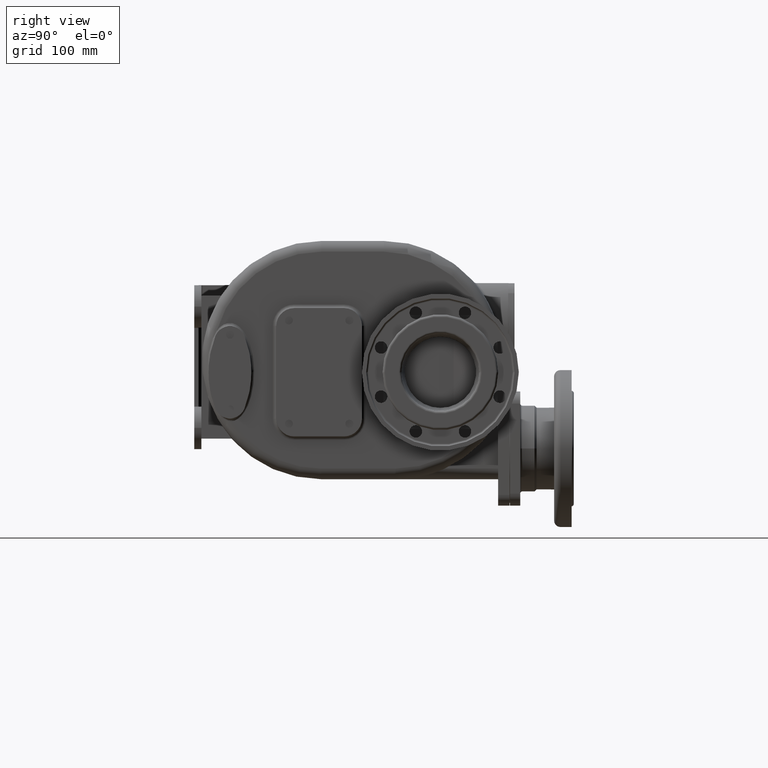
[diagram: clean part render]
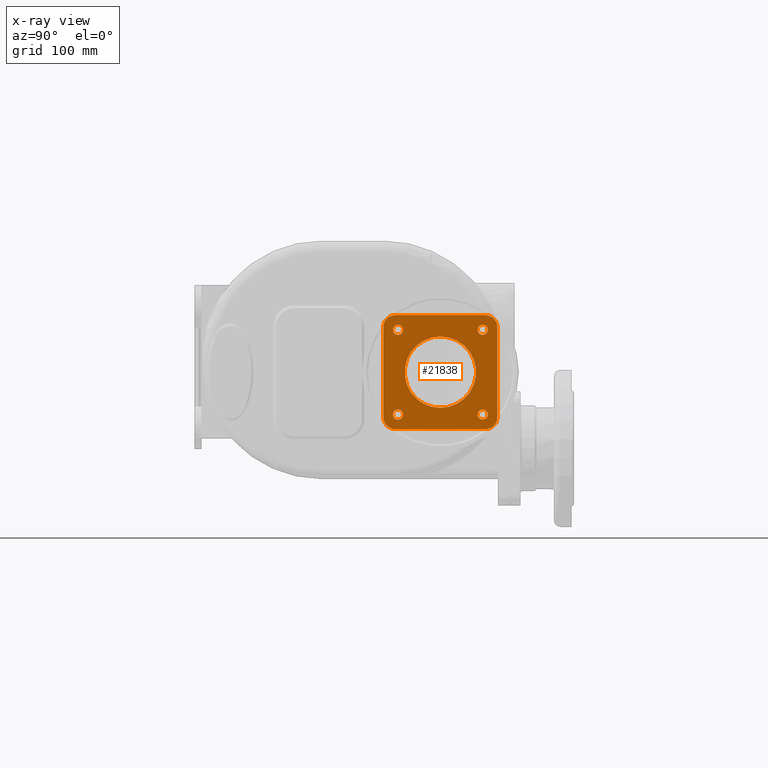
[diagram: x-ray — body ghosted, one internal face saturated and labeled with its STEP entity id]
A machine part, right view, then the same camera in x-ray: the body is ghosted and one INTERNAL B-rep face — a face not visible from any outside direction — is saturated and labeled: STEP entity #21838.
In plain terms, the highlighted planar face has unit normal (1, 0, 0).
Its self-contained STEP definition (entity closure, byte-faithful):
#3060=CARTESIAN_POINT('',(2.01E2,3.98E2,4.6E1));
#3061=DIRECTION('',(-1.E0,0.E0,0.E0));
#3062=DIRECTION('',(0.E0,-1.203742987641E-13,1.E0));
#3063=AXIS2_PLACEMENT_3D('',#3060,#3061,#3062);
#3110=DIRECTION('',(0.E0,0.E0,1.E0));
#3111=VECTOR('',#3110,1.26E2);
#3112=CARTESIAN_POINT('',(2.01E2,4.15E2,-8.E1));
#3113=LINE('',#3112,#3111);
#3123=CARTESIAN_POINT('',(2.01E2,3.98E2,-8.E1));
#3124=DIRECTION('',(-1.E0,0.E0,0.E0));
#3125=DIRECTION('',(0.E0,1.E0,1.596631323884E-13));
#3126=AXIS2_PLACEMENT_3D('',#3123,#3124,#3125);
#6542=DIRECTION('',(0.E0,-1.E0,0.E0));
#6543=VECTOR('',#6542,1.26E2);
#6544=CARTESIAN_POINT('',(2.01E2,3.98E2,6.3E1));
#6545=LINE('',#6544,#6543);
#6554=CARTESIAN_POINT('',(2.01E2,3.35E2,-1.7E1));
#6555=DIRECTION('',(1.E0,0.E0,0.E0));
#6556=DIRECTION('',(0.E0,0.E0,-1.E0));
#6557=AXIS2_PLACEMENT_3D('',#6554,#6555,#6556);
#6559=CARTESIAN_POINT('',(2.01E2,3.35E2,-1.7E1));
#6560=DIRECTION('',(-1.E0,0.E0,0.E0));
#6561=DIRECTION('',(0.E0,0.E0,-1.E0));
#6562=AXIS2_PLACEMENT_3D('',#6559,#6560,#6561);
#6564=CARTESIAN_POINT('',(2.01E2,3.943969696197E2,4.239696961967E1));
#6565=DIRECTION('',(-1.E0,0.E0,0.E0));
#6566=DIRECTION('',(0.E0,0.E0,-1.E0));
#6567=AXIS2_PLACEMENT_3D('',#6564,#6565,#6566);
#6569=CARTESIAN_POINT('',(2.01E2,3.943969696197E2,4.239696961967E1));
#6570=DIRECTION('',(-1.E0,0.E0,0.E0));
#6571=DIRECTION('',(0.E0,0.E0,1.E0));
#6572=AXIS2_PLACEMENT_3D('',#6569,#6570,#6571);
#6574=CARTESIAN_POINT('',(2.01E2,2.756030303803E2,4.239696961967E1));
#6575=DIRECTION('',(-1.E0,0.E0,0.E0));
#6576=DIRECTION('',(0.E0,1.E0,0.E0));
#6577=AXIS2_PLACEMENT_3D('',#6574,#6575,#6576);
#6579=CARTESIAN_POINT('',(2.01E2,2.756030303803E2,4.239696961967E1));
#6580=DIRECTION('',(-1.E0,0.E0,0.E0));
#6581=DIRECTION('',(0.E0,-1.E0,0.E0));
#6582=AXIS2_PLACEMENT_3D('',#6579,#6580,#6581);
#6584=CARTESIAN_POINT('',(2.01E2,2.756030303803E2,-7.639696961967E1));
#6585=DIRECTION('',(-1.E0,0.E0,0.E0));
#6586=DIRECTION('',(0.E0,0.E0,1.E0));
#6587=AXIS2_PLACEMENT_3D('',#6584,#6585,#6586);
#6589=CARTESIAN_POINT('',(2.01E2,2.756030303803E2,-7.639696961967E1));
#6590=DIRECTION('',(-1.E0,0.E0,0.E0));
#6591=DIRECTION('',(0.E0,0.E0,-1.E0));
#6592=AXIS2_PLACEMENT_3D('',#6589,#6590,#6591);
#6594=CARTESIAN_POINT('',(2.01E2,3.943969696197E2,-7.639696961967E1));
#6595=DIRECTION('',(-1.E0,0.E0,0.E0));
#6596=DIRECTION('',(0.E0,-1.E0,0.E0));
#6597=AXIS2_PLACEMENT_3D('',#6594,#6595,#6596);
#6599=CARTESIAN_POINT('',(2.01E2,3.943969696197E2,-7.639696961967E1));
#6600=DIRECTION('',(-1.E0,0.E0,0.E0));
#6601=DIRECTION('',(0.E0,1.E0,0.E0));
#6602=AXIS2_PLACEMENT_3D('',#6599,#6600,#6601);
#6612=DIRECTION('',(0.E0,1.E0,0.E0));
#6613=VECTOR('',#6612,1.26E2);
#6614=CARTESIAN_POINT('',(2.01E2,2.72E2,-9.7E1));
#6615=LINE('',#6614,#6613);
#6624=CARTESIAN_POINT('',(2.01E2,2.72E2,-8.E1));
#6625=DIRECTION('',(-1.E0,0.E0,0.E0));
#6626=DIRECTION('',(0.E0,1.203742987641E-13,-1.E0));
#6627=AXIS2_PLACEMENT_3D('',#6624,#6625,#6626);
#6642=DIRECTION('',(0.E0,0.E0,-1.E0));
#6643=VECTOR('',#6642,1.26E2);
#6644=CARTESIAN_POINT('',(2.01E2,2.55E2,4.6E1));
#6645=LINE('',#6644,#6643);
#6654=CARTESIAN_POINT('',(2.01E2,2.72E2,4.6E1));
#6655=DIRECTION('',(-1.E0,0.E0,0.E0));
#6656=DIRECTION('',(0.E0,-1.E0,-4.221459783045E-14));
#6657=AXIS2_PLACEMENT_3D('',#6654,#6655,#6656);
#13318=CARTESIAN_POINT('',(2.01E2,3.35E2,-6.7E1));
#13319=CARTESIAN_POINT('',(2.01E2,3.35E2,3.3E1));
#13320=VERTEX_POINT('',#13318);
#13321=VERTEX_POINT('',#13319);
#13322=CARTESIAN_POINT('',(2.01E2,4.15E2,-8.E1));
#13323=CARTESIAN_POINT('',(2.01E2,4.15E2,4.6E1));
#13324=VERTEX_POINT('',#13322);
#13325=VERTEX_POINT('',#13323);
#13326=CARTESIAN_POINT('',(2.01E2,3.98E2,6.3E1));
#13327=CARTESIAN_POINT('',(2.01E2,2.72E2,6.3E1));
#13328=VERTEX_POINT('',#13326);
#13329=VERTEX_POINT('',#13327);
#13330=CARTESIAN_POINT('',(2.01E2,2.55E2,4.6E1));
#13331=CARTESIAN_POINT('',(2.01E2,2.55E2,-8.E1));
#13332=VERTEX_POINT('',#13330);
#13333=VERTEX_POINT('',#13331);
#13334=CARTESIAN_POINT('',(2.01E2,2.72E2,-9.7E1));
#13335=CARTESIAN_POINT('',(2.01E2,3.98E2,-9.7E1));
#13336=VERTEX_POINT('',#13334);
#13337=VERTEX_POINT('',#13335);
#13350=CARTESIAN_POINT('',(2.01E2,3.943969696197E2,3.539696961967E1));
#13351=CARTESIAN_POINT('',(2.01E2,3.943969696197E2,4.939696961967E1));
#13352=VERTEX_POINT('',#13350);
#13353=VERTEX_POINT('',#13351);
#13354=CARTESIAN_POINT('',(2.01E2,2.826030303803E2,4.239696961967E1));
#13355=CARTESIAN_POINT('',(2.01E2,2.686030303803E2,4.239696961967E1));
#13356=VERTEX_POINT('',#13354);
#13357=VERTEX_POINT('',#13355);
#13358=CARTESIAN_POINT('',(2.01E2,2.756030303803E2,-6.939696961967E1));
#13359=CARTESIAN_POINT('',(2.01E2,2.756030303803E2,-8.339696961967E1));
#13360=VERTEX_POINT('',#13358);
#13361=VERTEX_POINT('',#13359);
#13362=CARTESIAN_POINT('',(2.01E2,3.873969696197E2,-7.639696961967E1));
#13363=CARTESIAN_POINT('',(2.01E2,4.013969696197E2,-7.639696961967E1));
#13364=VERTEX_POINT('',#13362);
#13365=VERTEX_POINT('',#13363);
#21789=CARTESIAN_POINT('',(2.01E2,3.35E2,-1.7E1));
#21790=DIRECTION('',(1.E0,0.E0,0.E0));
#21791=DIRECTION('',(0.E0,0.E0,-1.E0));
#21792=AXIS2_PLACEMENT_3D('',#21789,#21790,#21791);
#21793=PLANE('',#21792);
#21794=ORIENTED_EDGE('',*,*,#17632,.F.);
#21795=ORIENTED_EDGE('',*,*,#17648,.T.);
#21797=ORIENTED_EDGE('',*,*,#21796,.F.);
#21799=ORIENTED_EDGE('',*,*,#21798,.T.);
#21801=ORIENTED_EDGE('',*,*,#21800,.F.);
#21803=ORIENTED_EDGE('',*,*,#21802,.T.);
#21804=ORIENTED_EDGE('',*,*,#21781,.F.);
#21805=ORIENTED_EDGE('',*,*,#17594,.T.);
#21806=EDGE_LOOP('',(#21794,#21795,#21797,#21799,#21801,#21803,#21804,#21805));
#21807=FACE_OUTER_BOUND('',#21806,.F.);
#21809=ORIENTED_EDGE('',*,*,#21808,.T.);
#21811=ORIENTED_EDGE('',*,*,#21810,.F.);
#21812=EDGE_LOOP('',(#21809,#21811));
#21813=FACE_BOUND('',#21812,.F.);
#21815=ORIENTED_EDGE('',*,*,#21814,.F.);
#21817=ORIENTED_EDGE('',*,*,#21816,.F.);
#21818=EDGE_LOOP('',(#21815,#21817));
#21819=FACE_BOUND('',#21818,.F.);
#21821=ORIENTED_EDGE('',*,*,#21820,.F.);
#21823=ORIENTED_EDGE('',*,*,#21822,.F.);
#21824=EDGE_LOOP('',(#21821,#21823));
#21825=FACE_BOUND('',#21824,.F.);
#21827=ORIENTED_EDGE('',*,*,#21826,.F.);
#21829=ORIENTED_EDGE('',*,*,#21828,.F.);
#21830=EDGE_LOOP('',(#21827,#21829));
#21831=FACE_BOUND('',#21830,.F.);
#21833=ORIENTED_EDGE('',*,*,#21832,.F.);
#21835=ORIENTED_EDGE('',*,*,#21834,.F.);
#21836=EDGE_LOOP('',(#21833,#21835));
#21837=FACE_BOUND('',#21836,.F.);
#21838=ADVANCED_FACE('',(#21807,#21813,#21819,#21825,#21831,#21837),#21793,.T.);
#3064=CIRCLE('',#3063,1.7E1);
#3127=CIRCLE('',#3126,1.7E1);
#6558=CIRCLE('',#6557,5.E1);
#6563=CIRCLE('',#6562,5.E1);
#6568=CIRCLE('',#6567,7.E0);
#6573=CIRCLE('',#6572,7.E0);
#6578=CIRCLE('',#6577,7.E0);
#6583=CIRCLE('',#6582,7.E0);
#6588=CIRCLE('',#6587,7.E0);
#6593=CIRCLE('',#6592,7.E0);
#6598=CIRCLE('',#6597,7.E0);
#6603=CIRCLE('',#6602,7.E0);
#6628=CIRCLE('',#6627,1.7E1);
#6658=CIRCLE('',#6657,1.7E1);
#17594=EDGE_CURVE('',#13328,#13325,#3064,.T.);
#17632=EDGE_CURVE('',#13324,#13325,#3113,.T.);
#17648=EDGE_CURVE('',#13324,#13337,#3127,.T.);
#21781=EDGE_CURVE('',#13328,#13329,#6545,.T.);
#21796=EDGE_CURVE('',#13336,#13337,#6615,.T.);
#21798=EDGE_CURVE('',#13336,#13333,#6628,.T.);
#21800=EDGE_CURVE('',#13332,#13333,#6645,.T.);
#21802=EDGE_CURVE('',#13332,#13329,#6658,.T.);
#21808=EDGE_CURVE('',#13320,#13321,#6558,.T.);
#21810=EDGE_CURVE('',#13320,#13321,#6563,.T.);
#21814=EDGE_CURVE('',#13352,#13353,#6568,.T.);
#21816=EDGE_CURVE('',#13353,#13352,#6573,.T.);
#21820=EDGE_CURVE('',#13356,#13357,#6578,.T.);
#21822=EDGE_CURVE('',#13357,#13356,#6583,.T.);
#21826=EDGE_CURVE('',#13360,#13361,#6588,.T.);
#21828=EDGE_CURVE('',#13361,#13360,#6593,.T.);
#21832=EDGE_CURVE('',#13364,#13365,#6598,.T.);
#21834=EDGE_CURVE('',#13365,#13364,#6603,.T.);